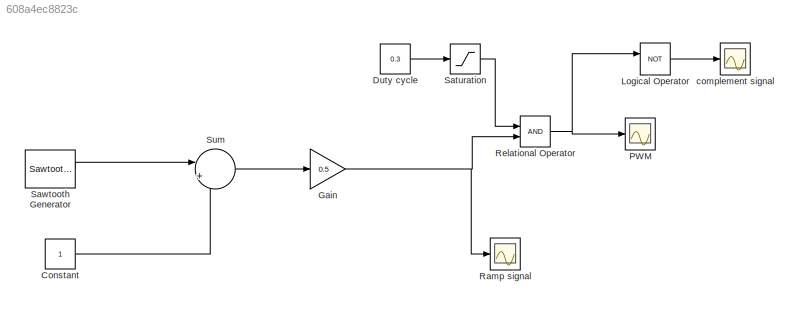
MODEL slx_608a4ec8823c
KIND model
CONFIG AbsTol = auto
CONFIG EnableMultiTasking = off
CONFIG FixedStep = auto
CONFIG MaxStep = auto
CONFIG MinStep = auto
CONFIG RelTol = 1e-3
CONFIG SampleTimeConstraint = Unconstrained
CONFIG SolverName = VariableStepAuto
CONFIG StartTime = 0.0
CONFIG StopTime = 0.05
BLOCK [Constant] Constant
BLOCK [Constant] Duty cycle
  Value = 0.3
BLOCK [Gain] Gain
  Gain = 0.5
BLOCK [Logic] Logical Operator
  AllPortsSameDT = off
  Operator = NOT
  OutDataTypeStr = boolean
BLOCK [Scope] PWM
  Floating = off
  NumInputPorts = 1
  ScopeSpecificationString = Simulink.scopes.TimeScopeBlockCfg('CurrentConfiguration', extmgr.ConfigurationSet(extmgr.Configuration('Core','General UI',true),extmgr.Configuration('Core','Source UI',true),extmgr.Configuration('Sources','WiredSimulink',true,'DataLoggingVariableName','ScopeData1'),extmgr.Configuration('Visuals','Time Domain',true,'SerializedDisplays',{struct('MinYLimReal','-0.01305','MaxYLimReal','1.02744','YLab...<+1540ch>
BLOCK [Scope] Ramp signal
  Floating = off
  NumInputPorts = 1
  ScopeSpecificationString = Simulink.scopes.TimeScopeBlockCfg('CurrentConfiguration', extmgr.ConfigurationSet(extmgr.Configuration('Core','General UI',true),extmgr.Configuration('Core','Source UI',true),extmgr.Configuration('Sources','WiredSimulink',true),extmgr.Configuration('Visuals','Time Domain',true,'SerializedDisplays',{struct('MinYLimReal','-0.02131','MaxYLimReal','1.02193','YLabelReal','','MinYLimMag','0.00000','MaxY...<+1457ch>
BLOCK [RelationalOperator] Relational Operator
  InputSameDT = off
  OutDataTypeStr = boolean
  RndMeth = Simplest
BLOCK [Saturate] Saturation
  LowerLimit = 0
  UpperLimit = 1
BLOCK [Reference] Sawtooth Generator  REF=spsSawtoothGeneratorLib/Sawtooth
Generator
  LibrarySourceBlock = sps_lib/Sources/Signal Generator Sources/Sawtooth\nGenerator
  SourceBlock = spsSawtoothGeneratorLib/Sawtooth\nGenerator
  SourceType = Sawtooth Generator
BLOCK [Sum] Sum
  Inputs = |++
BLOCK [Scope] complement signal
  Floating = off
  NumInputPorts = 1
  ScopeSpecificationString = Simulink.scopes.TimeScopeBlockCfg('CurrentConfiguration', extmgr.ConfigurationSet(extmgr.Configuration('Core','General UI',true),extmgr.Configuration('Core','Source UI',true),extmgr.Configuration('Sources','WiredSimulink',true,'DataLoggingVariableName','ScopeData2'),extmgr.Configuration('Visuals','Time Domain',true,'SerializedDisplays',{struct('MinYLimReal','-0.02995','MaxYLimReal','1.01234','YLab...<+1537ch>
LINE Constant:1 -> Sum:2
LINE Duty cycle:1 -> Saturation:1
NET Gain:1 -> Ramp signal:1, Relational Operator:2
LINE Logical Operator:1 -> complement signal:1
NET Relational Operator:1 -> Logical Operator:1, PWM:1
LINE Saturation:1 -> Relational Operator:1
LINE Sawtooth Generator:1 -> Sum:1
LINE Sum:1 -> Gain:1
note: NET lines group one-source signal fan-out (src -> all destinations, sorted); 1:1 wires keep LINE
